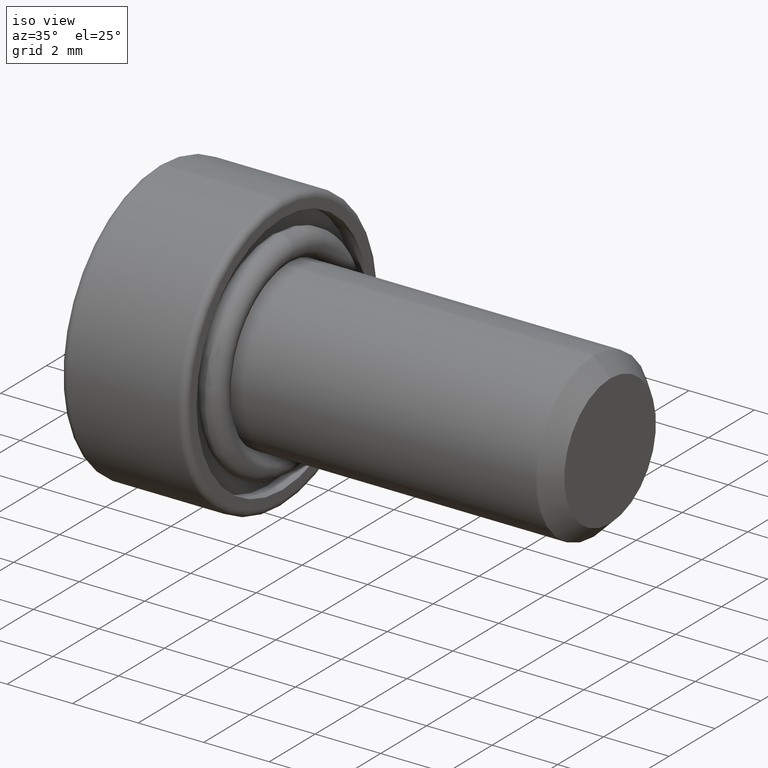
[diagram: clean part render]
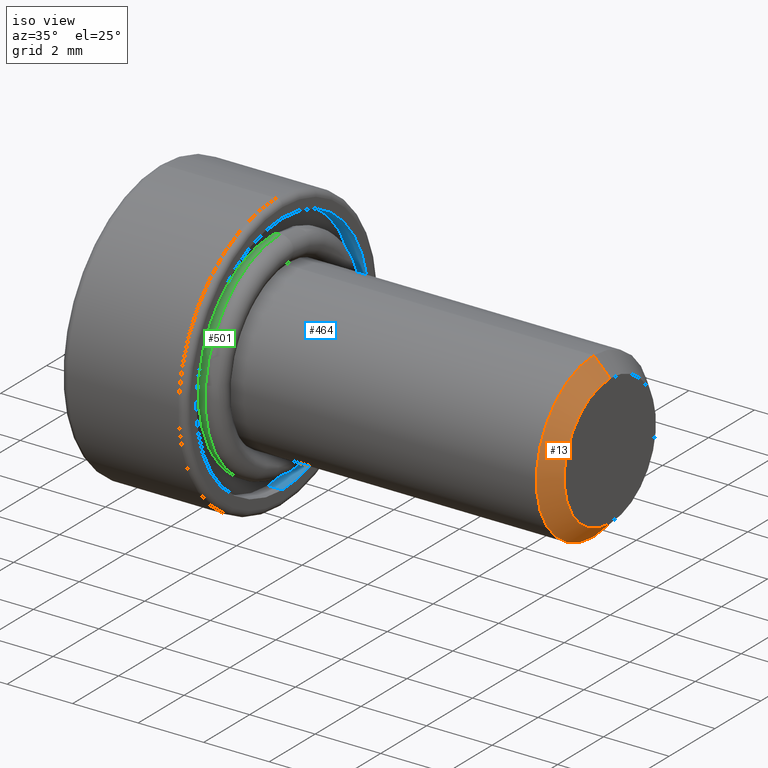
[diagram: same view with three faces highlighted in distinct colors, each labeled with its STEP entity id]
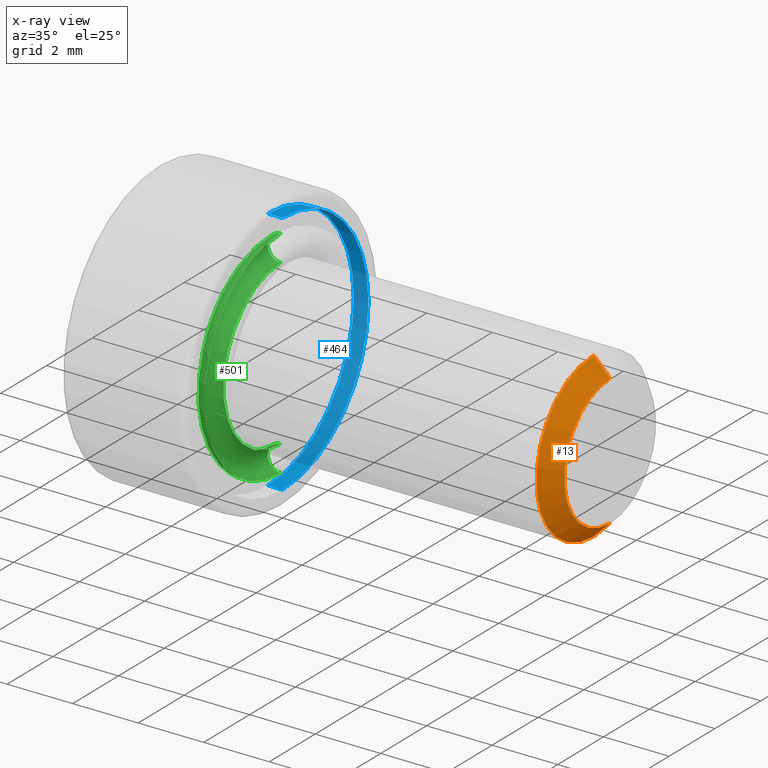
[diagram: x-ray of the same camera — body ghosted, the three highlighted faces saturated]
A machine part, iso view with three faces highlighted in distinct colors.
The next image is the same camera in x-ray (body ghosted, the three faces saturated) — at least one of them is partly hidden behind the body in this view.
Their STEP definitions:

[orange] entity #13 — the highlighted conical surface has half-angle 45 deg.
#13 = ADVANCED_FACE ( 'NONE', ( #456 ), #737, .T. ) ;
#25 = DIRECTION ( 'NONE',  ( 0.0000000000000000000, 0.0000000000000000000, 1.000000000000000000 ) ) ;
#38 = DIRECTION ( 'NONE',  ( -0.7071067811865489100, 0.0000000000000000000, 0.7071067811865460200 ) ) ;
#106 = DIRECTION ( 'NONE',  ( -1.000000000000000000, 0.0000000000000000000, 0.0000000000000000000 ) ) ;
#140 = EDGE_LOOP ( 'NONE', ( #596, #399, #641, #174 ) ) ;
#161 = EDGE_CURVE ( 'NONE', #730, #271, #506, .T. ) ;
#174 = ORIENTED_EDGE ( 'NONE', *, *, #772, .F. ) ;
#218 = AXIS2_PLACEMENT_3D ( 'NONE', #633, #804, #250 ) ;
#224 = CARTESIAN_POINT ( 'NONE',  ( 10.00000000000000000, 0.0000000000000000000, 2.000000000000001800 ) ) ;
#250 = DIRECTION ( 'NONE',  ( 0.0000000000000000000, 0.0000000000000000000, -1.000000000000000000 ) ) ;
#271 = VERTEX_POINT ( 'NONE', #795 ) ;
#354 = AXIS2_PLACEMENT_3D ( 'NONE', #382, #106, #25 ) ;
#365 = CARTESIAN_POINT ( 'NONE',  ( 9.500000000000000000, 0.0000000000000000000, 2.500000000000000000 ) ) ;
#379 = EDGE_CURVE ( 'NONE', #271, #539, #676, .T. ) ;
#382 = CARTESIAN_POINT ( 'NONE',  ( 10.00000000000000000, 0.0000000000000000000, 0.0000000000000000000 ) ) ;
#384 = VERTEX_POINT ( 'NONE', #365 ) ;
#389 = LINE ( 'NONE', #453, #548 ) ;
#399 = ORIENTED_EDGE ( 'NONE', *, *, #161, .F. ) ;
#453 = CARTESIAN_POINT ( 'NONE',  ( 10.00000000000000000, 0.0000000000000000000, 2.000000000000001800 ) ) ;
#456 = FACE_OUTER_BOUND ( 'NONE', #140, .T. ) ;
#457 = CIRCLE ( 'NONE', #218, 2.500000000000000000 ) ;
#468 = DIRECTION ( 'NONE',  ( -0.7071067811865489100, 8.659560562354913100E-017, -0.7071067811865460200 ) ) ;
#505 = CARTESIAN_POINT ( 'NONE',  ( 10.00000000000000000, 0.0000000000000000000, 0.0000000000000000000 ) ) ;
#506 = CIRCLE ( 'NONE', #601, 2.000000000000001800 ) ;
#520 = VECTOR ( 'NONE', #468, 1000.000000000000100 ) ;
#539 = VERTEX_POINT ( 'NONE', #545 ) ;
#545 = CARTESIAN_POINT ( 'NONE',  ( 9.500000000000000000, 3.061616997868383100E-016, -2.500000000000000000 ) ) ;
#548 = VECTOR ( 'NONE', #38, 1000.000000000000100 ) ;
#596 = ORIENTED_EDGE ( 'NONE', *, *, #379, .F. ) ;
#601 = AXIS2_PLACEMENT_3D ( 'NONE', #505, #680, #716 ) ;
#633 = CARTESIAN_POINT ( 'NONE',  ( 9.500000000000000000, 0.0000000000000000000, 0.0000000000000000000 ) ) ;
#635 = EDGE_CURVE ( 'NONE', #730, #384, #389, .T. ) ;
#641 = ORIENTED_EDGE ( 'NONE', *, *, #635, .T. ) ;
#676 = LINE ( 'NONE', #773, #520 ) ;
#680 = DIRECTION ( 'NONE',  ( 1.000000000000000000, 0.0000000000000000000, 0.0000000000000000000 ) ) ;
#716 = DIRECTION ( 'NONE',  ( 0.0000000000000000000, 0.0000000000000000000, -1.000000000000000000 ) ) ;
#730 = VERTEX_POINT ( 'NONE', #224 ) ;
#737 = CONICAL_SURFACE ( 'NONE', #354, 2.000000000000001800, 0.7853981633974461700 ) ;
#772 = EDGE_CURVE ( 'NONE', #539, #384, #457, .T. ) ;
#773 = CARTESIAN_POINT ( 'NONE',  ( 10.00000000000000000, 2.449293598294708900E-016, -2.000000000000001800 ) ) ;
#795 = CARTESIAN_POINT ( 'NONE',  ( 10.00000000000000000, 2.755455298081545800E-016, -2.000000000000001800 ) ) ;
#804 = DIRECTION ( 'NONE',  ( -1.000000000000000000, 0.0000000000000000000, 0.0000000000000000000 ) ) ;

[blue] entity #464 — the highlighted cylindrical surface (partial cylindrical patch) has radius 3.75 mm, axis along (1, 0, 0).
#42 = CARTESIAN_POINT ( 'NONE',  ( 0.0000000000000000000, 0.0000000000000000000, -3.750000000000000000 ) ) ;
#56 = VECTOR ( 'NONE', #765, 1000.000000000000000 ) ;
#59 = VERTEX_POINT ( 'NONE', #42 ) ;
#66 = EDGE_CURVE ( 'NONE', #59, #751, #414, .T. ) ;
#69 = DIRECTION ( 'NONE',  ( 1.000000000000000000, -0.0000000000000000000, -0.0000000000000000000 ) ) ;
#141 = CARTESIAN_POINT ( 'NONE',  ( -0.4500000000000000100, 4.592425496802574000E-016, 3.750000000000000000 ) ) ;
#153 = ORIENTED_EDGE ( 'NONE', *, *, #259, .T. ) ;
#203 = CARTESIAN_POINT ( 'NONE',  ( -0.4500000000000000100, 0.0000000000000000000, 0.0000000000000000000 ) ) ;
#215 = DIRECTION ( 'NONE',  ( 1.000000000000000000, -0.0000000000000000000, -0.0000000000000000000 ) ) ;
#228 = ORIENTED_EDGE ( 'NONE', *, *, #576, .F. ) ;
#242 = DIRECTION ( 'NONE',  ( 1.000000000000000000, 0.0000000000000000000, 0.0000000000000000000 ) ) ;
#249 = LINE ( 'NONE', #720, #696 ) ;
#259 = EDGE_CURVE ( 'NONE', #551, #59, #249, .T. ) ;
#325 = CARTESIAN_POINT ( 'NONE',  ( 0.0000000000000000000, 4.592425496802574000E-016, 3.750000000000000000 ) ) ;
#336 = ORIENTED_EDGE ( 'NONE', *, *, #66, .T. ) ;
#349 = CARTESIAN_POINT ( 'NONE',  ( 0.0000000000000000000, 0.0000000000000000000, 0.0000000000000000000 ) ) ;
#377 = AXIS2_PLACEMENT_3D ( 'NONE', #203, #536, #762 ) ;
#414 = CIRCLE ( 'NONE', #446, 3.750000000000000000 ) ;
#425 = LINE ( 'NONE', #598, #56 ) ;
#446 = AXIS2_PLACEMENT_3D ( 'NONE', #349, #242, #786 ) ;
#462 = EDGE_CURVE ( 'NONE', #551, #562, #805, .T. ) ;
#464 = ADVANCED_FACE ( 'NONE', ( #644 ), #787, .F. ) ;
#489 = CARTESIAN_POINT ( 'NONE',  ( -0.4500000000000000100, 0.0000000000000000000, -3.750000000000000000 ) ) ;
#503 = AXIS2_PLACEMENT_3D ( 'NONE', #584, #69, #699 ) ;
#536 = DIRECTION ( 'NONE',  ( 1.000000000000000000, 0.0000000000000000000, 0.0000000000000000000 ) ) ;
#542 = EDGE_LOOP ( 'NONE', ( #228, #698, #153, #336 ) ) ;
#551 = VERTEX_POINT ( 'NONE', #489 ) ;
#562 = VERTEX_POINT ( 'NONE', #141 ) ;
#576 = EDGE_CURVE ( 'NONE', #562, #751, #425, .T. ) ;
#584 = CARTESIAN_POINT ( 'NONE',  ( -0.4500000000000000100, 0.0000000000000000000, 0.0000000000000000000 ) ) ;
#598 = CARTESIAN_POINT ( 'NONE',  ( -0.4500000000000000100, 4.592425496802574000E-016, 3.750000000000000000 ) ) ;
#644 = FACE_OUTER_BOUND ( 'NONE', #542, .T. ) ;
#696 = VECTOR ( 'NONE', #215, 1000.000000000000000 ) ;
#698 = ORIENTED_EDGE ( 'NONE', *, *, #462, .F. ) ;
#699 = DIRECTION ( 'NONE',  ( 0.0000000000000000000, 0.0000000000000000000, -1.000000000000000000 ) ) ;
#720 = CARTESIAN_POINT ( 'NONE',  ( -0.4500000000000000100, 0.0000000000000000000, -3.750000000000000000 ) ) ;
#751 = VERTEX_POINT ( 'NONE', #325 ) ;
#762 = DIRECTION ( 'NONE',  ( 0.0000000000000000000, 0.0000000000000000000, -1.000000000000000000 ) ) ;
#765 = DIRECTION ( 'NONE',  ( 1.000000000000000000, -0.0000000000000000000, -0.0000000000000000000 ) ) ;
#786 = DIRECTION ( 'NONE',  ( 0.0000000000000000000, 0.0000000000000000000, -1.000000000000000000 ) ) ;
#787 = CYLINDRICAL_SURFACE ( 'NONE', #503, 3.750000000000000000 ) ;
#805 = CIRCLE ( 'NONE', #377, 3.750000000000000000 ) ;

[green] entity #501 — the highlighted toroidal blend (fillet) surface has major radius 2.9 mm and minor (blend) radius 0.4 mm.
#5 = EDGE_CURVE ( 'NONE', #91, #808, #620, .T. ) ;
#39 = AXIS2_PLACEMENT_3D ( 'NONE', #502, #627, #703 ) ;
#73 = ORIENTED_EDGE ( 'NONE', *, *, #227, .T. ) ;
#83 = CARTESIAN_POINT ( 'NONE',  ( -0.05000000000000007200, 0.0000000000000000000, -2.499999999999999600 ) ) ;
#90 = CARTESIAN_POINT ( 'NONE',  ( -0.05000000000000002400, 4.041334437186265500E-016, 3.299999999999999800 ) ) ;
#91 = VERTEX_POINT ( 'NONE', #210 ) ;
#109 = CIRCLE ( 'NONE', #654, 2.499999999999999600 ) ;
#112 = EDGE_LOOP ( 'NONE', ( #391, #245, #283, #73 ) ) ;
#121 = DIRECTION ( 'NONE',  ( 0.0000000000000000000, 0.0000000000000000000, -1.000000000000000000 ) ) ;
#135 = DIRECTION ( 'NONE',  ( 0.0000000000000000000, 1.224646799147353200E-016, 1.000000000000000000 ) ) ;
#142 = CARTESIAN_POINT ( 'NONE',  ( -0.05000000000000002400, 3.551475717527323800E-016, 2.899999999999999900 ) ) ;
#143 = TOROIDAL_SURFACE ( 'NONE', #687, 2.899999999999999900, 0.4000000000000001300 ) ;
#146 = DIRECTION ( 'NONE',  ( 0.0000000000000000000, 0.0000000000000000000, -1.000000000000000000 ) ) ;
#194 = CARTESIAN_POINT ( 'NONE',  ( -0.05000000000000002400, 0.0000000000000000000, 0.0000000000000000000 ) ) ;
#210 = CARTESIAN_POINT ( 'NONE',  ( -0.05000000000000007200, 3.061616997868382600E-016, 2.499999999999999600 ) ) ;
#221 = CIRCLE ( 'NONE', #39, 3.299999999999999800 ) ;
#227 = EDGE_CURVE ( 'NONE', #244, #273, #452, .T. ) ;
#244 = VERTEX_POINT ( 'NONE', #83 ) ;
#245 = ORIENTED_EDGE ( 'NONE', *, *, #5, .F. ) ;
#260 = AXIS2_PLACEMENT_3D ( 'NONE', #142, #675, #135 ) ;
#272 = CARTESIAN_POINT ( 'NONE',  ( -0.05000000000000007200, 0.0000000000000000000, 0.0000000000000000000 ) ) ;
#273 = VERTEX_POINT ( 'NONE', #366 ) ;
#283 = ORIENTED_EDGE ( 'NONE', *, *, #509, .T. ) ;
#351 = DIRECTION ( 'NONE',  ( 1.000000000000000000, -0.0000000000000000000, -0.0000000000000000000 ) ) ;
#366 = CARTESIAN_POINT ( 'NONE',  ( -0.05000000000000002400, 0.0000000000000000000, -3.299999999999999800 ) ) ;
#391 = ORIENTED_EDGE ( 'NONE', *, *, #615, .F. ) ;
#452 = CIRCLE ( 'NONE', #463, 0.4000000000000001900 ) ;
#463 = AXIS2_PLACEMENT_3D ( 'NONE', #670, #695, #146 ) ;
#484 = FACE_OUTER_BOUND ( 'NONE', #112, .T. ) ;
#501 = ADVANCED_FACE ( 'NONE', ( #484 ), #143, .T. ) ;
#502 = CARTESIAN_POINT ( 'NONE',  ( -0.05000000000000002400, 0.0000000000000000000, 0.0000000000000000000 ) ) ;
#509 = EDGE_CURVE ( 'NONE', #91, #244, #109, .T. ) ;
#608 = DIRECTION ( 'NONE',  ( 0.0000000000000000000, 0.0000000000000000000, -1.000000000000000000 ) ) ;
#615 = EDGE_CURVE ( 'NONE', #808, #273, #221, .T. ) ;
#620 = CIRCLE ( 'NONE', #260, 0.4000000000000001900 ) ;
#627 = DIRECTION ( 'NONE',  ( 1.000000000000000000, -0.0000000000000000000, -0.0000000000000000000 ) ) ;
#654 = AXIS2_PLACEMENT_3D ( 'NONE', #272, #351, #121 ) ;
#670 = CARTESIAN_POINT ( 'NONE',  ( -0.05000000000000002400, 0.0000000000000000000, -2.899999999999999900 ) ) ;
#675 = DIRECTION ( 'NONE',  ( 0.0000000000000000000, 1.000000000000000000, -1.224646799147353200E-016 ) ) ;
#687 = AXIS2_PLACEMENT_3D ( 'NONE', #194, #781, #608 ) ;
#695 = DIRECTION ( 'NONE',  ( -0.0000000000000000000, -1.000000000000000000, -0.0000000000000000000 ) ) ;
#703 = DIRECTION ( 'NONE',  ( 0.0000000000000000000, 0.0000000000000000000, -1.000000000000000000 ) ) ;
#781 = DIRECTION ( 'NONE',  ( 1.000000000000000000, -0.0000000000000000000, -0.0000000000000000000 ) ) ;
#808 = VERTEX_POINT ( 'NONE', #90 ) ;